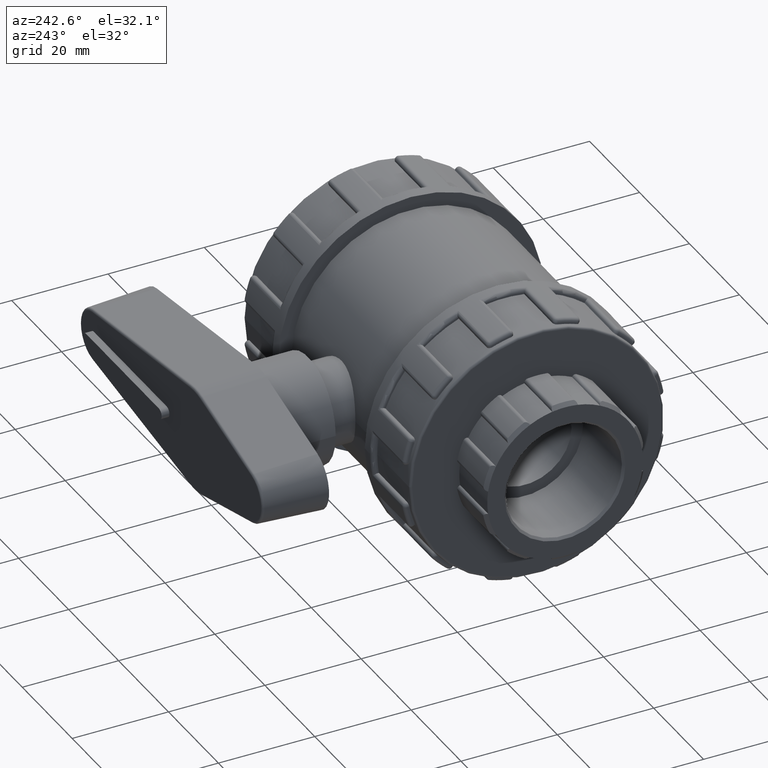
[diagram: clean part render]
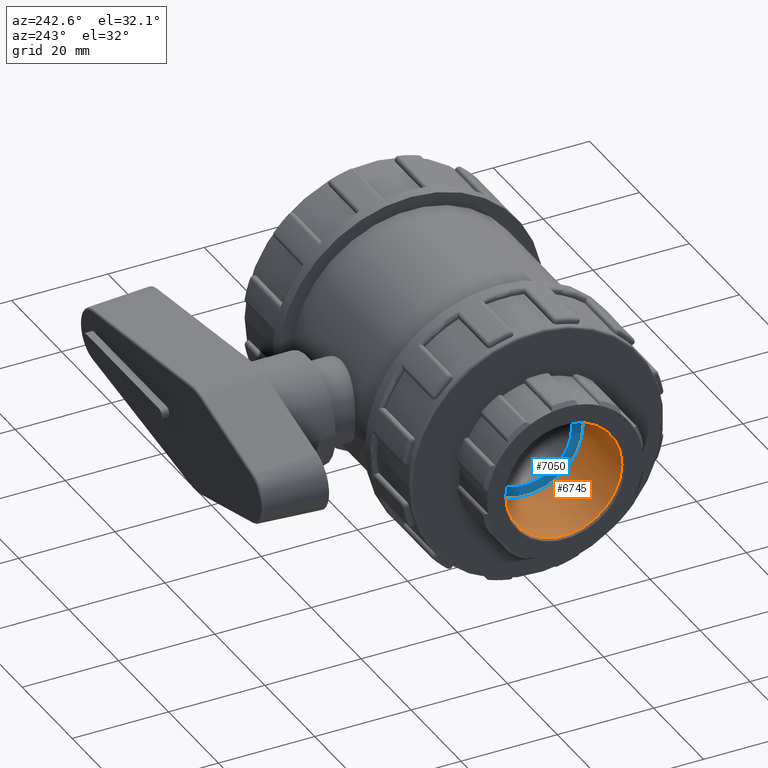
[diagram: same view with the hole feature highlighted: cylindrical wall and planar end face, labeled with their STEP entity ids]
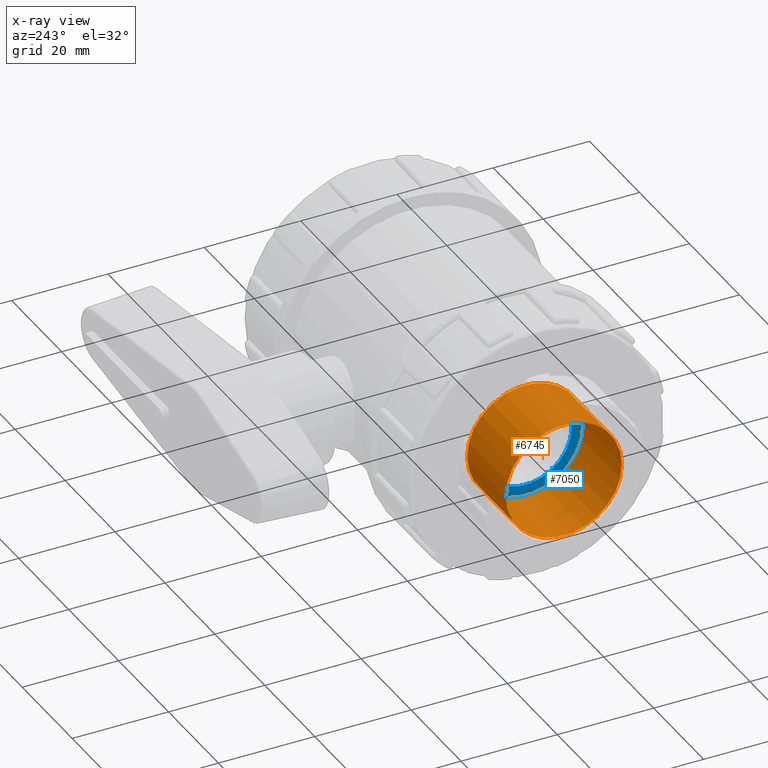
[diagram: x-ray of the same camera — body ghosted, the hole faces saturated]
A machine part, auxiliary view. The highlighted faces form one hole feature of diameter 24.117 mm: the cylindrical wall (entity #6745, orange) and its adjacent planar end face (entity #7050, blue) — they share a circular edge in the B-rep.
The next image is the same camera in x-ray (body ghosted, the hole faces saturated) — the bore reads through the body.
Wall:
#207=FACE_BOUND('',#990,.T.);
#548=FACE_OUTER_BOUND('',#989,.T.);
#989=EDGE_LOOP('',(#4855));
#990=EDGE_LOOP('',(#4856));
#2273=CIRCLE('',#7347,12.0585);
#2275=CIRCLE('',#7351,12.0585);
#2821=VERTEX_POINT('',#11423);
#2823=VERTEX_POINT('',#11429);
#3585=EDGE_CURVE('',#2821,#2821,#2273,.T.);
#3587=EDGE_CURVE('',#2823,#2823,#2275,.T.);
#4855=ORIENTED_EDGE('',*,*,#3587,.T.);
#4856=ORIENTED_EDGE('',*,*,#3585,.F.);
#6513=CYLINDRICAL_SURFACE('',#7350,12.0585);
#6745=ADVANCED_FACE('',(#548,#207),#6513,.F.);
#7347=AXIS2_PLACEMENT_3D('',#11424,#8704,#8705);
#7350=AXIS2_PLACEMENT_3D('',#11428,#8710,#8711);
#7351=AXIS2_PLACEMENT_3D('',#11430,#8712,#8713);
#8704=DIRECTION('center_axis',(1.,0.,0.));
#8705=DIRECTION('ref_axis',(0.,-1.,0.));
#8710=DIRECTION('center_axis',(1.,0.,0.));
#8711=DIRECTION('ref_axis',(0.,1.,0.));
#8712=DIRECTION('center_axis',(1.,0.,0.));
#8713=DIRECTION('ref_axis',(0.,0.,-1.));
#11423=CARTESIAN_POINT('',(-44.01766,12.0585,1.47674034275184E-15));
#11424=CARTESIAN_POINT('Origin',(-44.01766,0.,0.));
#11428=CARTESIAN_POINT('Origin',(-36.5,0.,0.));
#11429=CARTESIAN_POINT('',(-28.5,12.0585,0.));
#11430=CARTESIAN_POINT('Origin',(-28.5,0.,0.));
End face:
#225=FACE_BOUND('',#1313,.T.);
#339=PLANE('',#8005);
#853=FACE_OUTER_BOUND('',#1312,.T.);
#1312=EDGE_LOOP('',(#6423));
#1313=EDGE_LOOP('',(#6424));
#2275=CIRCLE('',#7351,12.0585);
#2624=CIRCLE('',#8004,9.6468);
#2823=VERTEX_POINT('',#11429);
#3268=VERTEX_POINT('',#14015);
#3587=EDGE_CURVE('',#2823,#2823,#2275,.T.);
#4320=EDGE_CURVE('',#3268,#3268,#2624,.T.);
#6423=ORIENTED_EDGE('',*,*,#3587,.F.);
#6424=ORIENTED_EDGE('',*,*,#4320,.T.);
#7050=ADVANCED_FACE('',(#853,#225),#339,.T.);
#7351=AXIS2_PLACEMENT_3D('',#11430,#8712,#8713);
#8004=AXIS2_PLACEMENT_3D('',#14016,#10306,#10307);
#8005=AXIS2_PLACEMENT_3D('',#14017,#10308,#10309);
#8712=DIRECTION('center_axis',(1.,0.,0.));
#8713=DIRECTION('ref_axis',(0.,0.,-1.));
#10306=DIRECTION('center_axis',(1.,0.,0.));
#10307=DIRECTION('ref_axis',(0.,0.,-1.));
#10308=DIRECTION('center_axis',(-1.,0.,0.));
#10309=DIRECTION('ref_axis',(0.,0.,1.));
#11429=CARTESIAN_POINT('',(-28.5,12.0585,0.));
#11430=CARTESIAN_POINT('Origin',(-28.5,0.,0.));
#14015=CARTESIAN_POINT('',(-28.5,9.6468,0.));
#14016=CARTESIAN_POINT('Origin',(-28.5,0.,0.));
#14017=CARTESIAN_POINT('Origin',(-28.5,12.0585,0.));